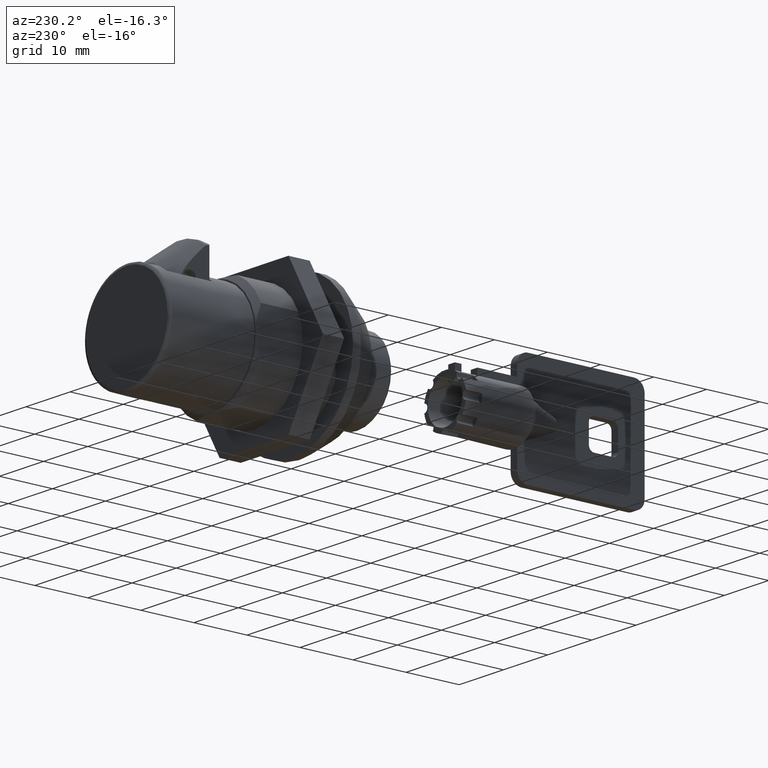
[diagram: clean part render]
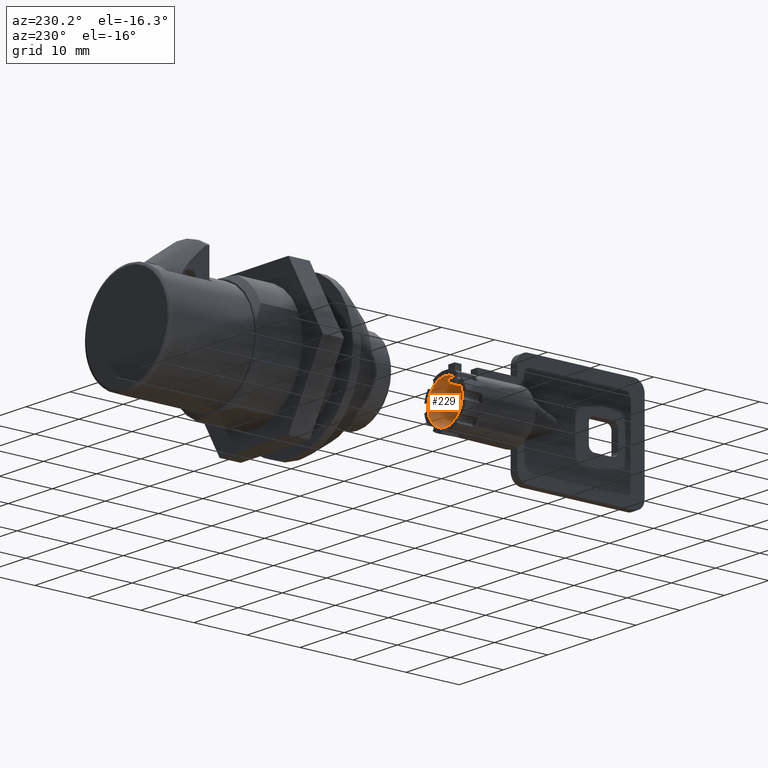
[diagram: same view with one face highlighted and labeled with its STEP entity id]
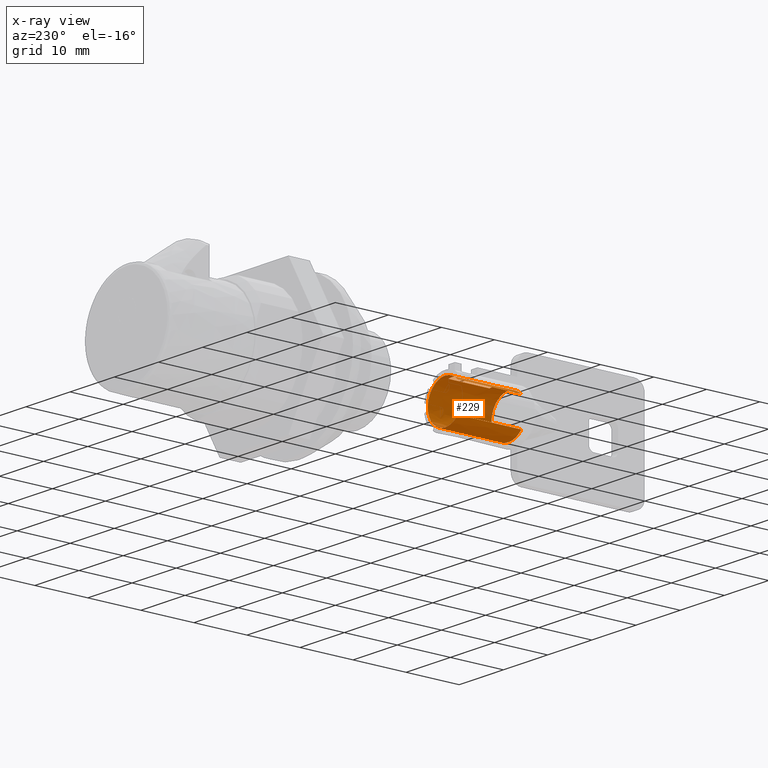
[diagram: x-ray of the same camera — body ghosted, the highlighted face saturated]
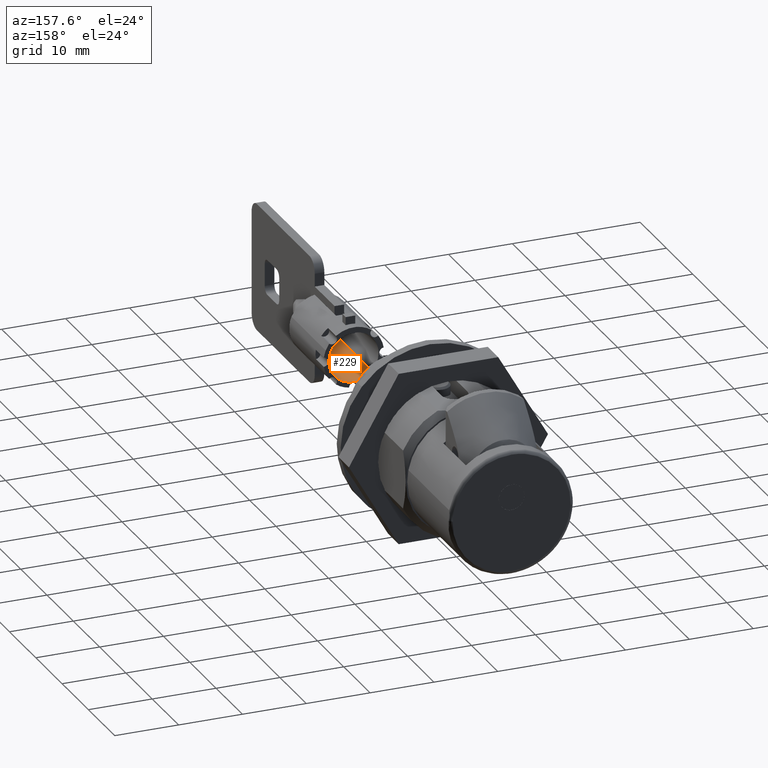
[diagram: same view with one face highlighted and labeled with its STEP entity id]
A machine part, auxiliary view. The second image highlights one B-rep face of the part: STEP entity #229.
The next image is the same camera in x-ray: the body ghosted, the highlighted face saturated — about 5% of this face is hidden behind the body in this view.
A second angle (auxiliary view) of the same face is appended — the face is thin or edge-on in the first view.
In plain terms, the highlighted face is a freeform B-spline surface patch.
Its self-contained STEP definition (entity closure, byte-faithful):
#44=CARTESIAN_POINT('',(-231.300000000000100,2.790782186700816,2.724249398713853));
#45=CARTESIAN_POINT('',(-231.300000000000070,2.712815339326325,2.804120385896108));
#46=CARTESIAN_POINT('',(-231.300000000000010,2.630408104447850,2.879401535745649));
#47=CARTESIAN_POINT('',(-231.300000000000070,-0.248993431297913,5.509809640193499));
#48=CARTESIAN_POINT('',(-231.300000000000010,-2.879401535745763,2.630408104447736));
#49=CARTESIAN_POINT('',(-231.300000000000070,-5.509809640193612,-0.248993431298027));
#50=CARTESIAN_POINT('',(-231.300000000000010,-2.630408104447850,-2.879401535745877));
#51=CARTESIAN_POINT('',(-231.300000000000070,0.248993431297913,-5.509809640193727));
#52=CARTESIAN_POINT('',(-231.300000000000010,2.879401535745763,-2.630408104447964));
#53=CARTESIAN_POINT('',(-218.692500000000050,2.790782186700816,2.724249398713853));
#54=CARTESIAN_POINT('',(-218.692500000000050,2.712815339326325,2.804120385896108));
#55=CARTESIAN_POINT('',(-218.692500000000000,2.630408104447850,2.879401535745649));
#56=CARTESIAN_POINT('',(-218.692500000000050,-0.248993431297913,5.509809640193499));
#57=CARTESIAN_POINT('',(-218.692500000000000,-2.879401535745763,2.630408104447736));
#58=CARTESIAN_POINT('',(-218.692500000000050,-5.509809640193612,-0.248993431298027));
#59=CARTESIAN_POINT('',(-218.692500000000000,-2.630408104447850,-2.879401535745877));
#60=CARTESIAN_POINT('',(-218.692500000000050,0.248993431297913,-5.509809640193727));
#61=CARTESIAN_POINT('',(-218.692500000000000,2.879401535745763,-2.630408104447964));
#69=(BOUNDED_SURFACE()B_SPLINE_SURFACE(2,1,((#44,#53),(#45,#54),(#46,#55),(#47,#56),(#48,#57),(#49,#58),(#50,#59),(#51,#60),(#52,#61)),.UNSPECIFIED.,.F.,.F.,.U.)B_SPLINE_SURFACE_WITH_KNOTS((3,2,2,2,3),(2,2),(0.0,0.258469262920812,6.720200835941092,13.181932408961369,19.643663981981650),(0.0,12.607500000000019),.UNSPECIFIED.)GEOMETRIC_REPRESENTATION_ITEM()RATIONAL_B_SPLINE_SURFACE(((0.977505800795127,0.977505800795127),(0.988284271247462,0.988284271247462),(1.0,1.0),(0.707106781186548,0.707106781186548),(1.0,1.0),(0.707106781186548,0.707106781186548),(1.0,1.0),(0.707106781186548,0.707106781186548),(1.0,1.0)))REPRESENTATION_ITEM('')SURFACE());
#70=CARTESIAN_POINT('',(-231.0,0.0,3.899999999999886));
#71=VERTEX_POINT('',#70);
#72=CARTESIAN_POINT('',(-231.000000000000310,2.790782475479818,2.724249173253588));
#73=VERTEX_POINT('',#72);
#74=CARTESIAN_POINT('',(-231.0,0.0,3.899999999999886));
#75=CARTESIAN_POINT('',(-230.999999999999890,0.291569677032156,3.900029272954258));
#76=CARTESIAN_POINT('',(-230.999999999999600,0.939521909948238,3.827095861577755));
#77=CARTESIAN_POINT('',(-231.000000000002190,1.918398604289464,3.457123283443087));
#78=CARTESIAN_POINT('',(-230.999999999999800,2.519332914624143,3.002578126791581));
#79=CARTESIAN_POINT('',(-231.000000000000310,2.790782475479818,2.724249173253588));
#80=B_SPLINE_CURVE_WITH_KNOTS('',3,(#74,#75,#76,#77,#78,#79),.UNSPECIFIED.,.F.,.U.,(4,1,1,4),(0.000000141824521,0.874742396220620,1.943862133378580,3.110180605883055),.UNSPECIFIED.);
#81=EDGE_CURVE('',#71,#73,#80,.T.);
#82=ORIENTED_EDGE('',*,*,#81,.T.);
#83=CARTESIAN_POINT('',(-219.0,2.790782472419465,2.724249176388685));
#84=VERTEX_POINT('',#83);
#85=CARTESIAN_POINT('',(-231.000000000000310,2.790782475479818,2.724249173253588));
#86=CARTESIAN_POINT('',(-219.0,2.790782472419465,2.724249176388685));
#87=QUASI_UNIFORM_CURVE('',1,(#85,#86),.UNSPECIFIED.,.F.,.U.);
#88=EDGE_CURVE('',#73,#84,#87,.T.);
#89=ORIENTED_EDGE('',*,*,#88,.T.);
#90=CARTESIAN_POINT('',(-219.0,0.0,3.899999999999886));
#91=VERTEX_POINT('',#90);
#92=CARTESIAN_POINT('',(-219.0,0.0,3.899999999999886));
#93=CARTESIAN_POINT('',(-219.000000000000310,0.421211551607653,3.900268197294159));
#94=CARTESIAN_POINT('',(-218.999999999999800,1.068950825569437,3.793945541803141));
#95=CARTESIAN_POINT('',(-219.0,2.022889782230002,3.377989185602780));
#96=CARTESIAN_POINT('',(-219.000000000000310,2.519335089531802,3.002583660453186));
#97=CARTESIAN_POINT('',(-219.0,2.790782472419465,2.724249176388685));
#98=B_SPLINE_CURVE_WITH_KNOTS('',3,(#92,#93,#94,#95,#96,#97),.UNSPECIFIED.,.F.,.U.,(4,1,1,4),(0.000000141824401,1.263535590892909,1.943862130640100,3.110180601501553),.UNSPECIFIED.);
#99=EDGE_CURVE('',#91,#84,#98,.T.);
#100=ORIENTED_EDGE('',*,*,#99,.F.);
#101=CARTESIAN_POINT('',(-219.0,-3.899999999999995,-0.000000196682410));
#102=VERTEX_POINT('',#101);
#103=CARTESIAN_POINT('',(-219.0,-3.899999999999995,-0.000000196682410));
#104=CARTESIAN_POINT('',(-219.000000000000600,-3.900545300636530,0.510590796302484));
#105=CARTESIAN_POINT('',(-218.999999999998810,-3.702941108623278,1.499320026534649));
#106=CARTESIAN_POINT('',(-219.000000000000800,-3.030757099458803,2.533019252369926));
#107=CARTESIAN_POINT('',(-219.000000000000600,-2.262677153508446,3.211586336580925));
#108=CARTESIAN_POINT('',(-218.999999999997300,-1.339743011298382,3.734649592669995));
#109=CARTESIAN_POINT('',(-219.000000000004010,-0.510611038871416,3.900585077311314));
#110=CARTESIAN_POINT('',(-219.0,0.0,3.899999999999886));
#111=B_SPLINE_CURVE_WITH_KNOTS('',3,(#103,#104,#105,#106,#107,#108,#109,#110),.UNSPECIFIED.,.F.,.U.,(4,1,1,1,1,4),(0.000000559796155,1.531566278461405,2.967486195470442,3.637401842989736,4.594694778240386,6.126259513818889),.UNSPECIFIED.);
#112=EDGE_CURVE('',#102,#91,#111,.T.);
#113=ORIENTED_EDGE('',*,*,#112,.F.);
#114=CARTESIAN_POINT('',(-219.0,0.0,-3.900000000000114));
#115=VERTEX_POINT('',#114);
#116=CARTESIAN_POINT('',(-219.0,0.0,-3.900000000000114));
#117=CARTESIAN_POINT('',(-219.000000000000400,-0.606441428800244,-3.900956754425516));
#118=CARTESIAN_POINT('',(-218.999999999999600,-1.530747717843891,-3.679893181240304));
#119=CARTESIAN_POINT('',(-219.000000000000510,-2.546317669441315,-3.000673900406954));
#120=CARTESIAN_POINT('',(-218.999999999999290,-3.223716555885120,-2.271696782253272));
#121=CARTESIAN_POINT('',(-219.000000000000800,-3.755901618448069,-1.276122685099909));
#122=CARTESIAN_POINT('',(-218.999999999999690,-3.900304134535765,-0.446740024101437));
#123=CARTESIAN_POINT('',(-219.0,-3.899999999999995,-0.000000196682410));
#124=B_SPLINE_CURVE_WITH_KNOTS('',3,(#116,#117,#118,#119,#120,#121,#122,#123),.UNSPECIFIED.,.F.,.U.,(4,1,1,1,1,4),(0.000000560065726,1.818754501048166,2.776019086348707,3.637401711080895,4.786143843678828,6.126259292106567),.UNSPECIFIED.);
#125=EDGE_CURVE('',#115,#102,#124,.T.);
#126=ORIENTED_EDGE('',*,*,#125,.F.);
#127=CARTESIAN_POINT('',(-219.0,2.879401499097993,-2.630408071958728));
#128=VERTEX_POINT('',#127);
#129=CARTESIAN_POINT('',(-219.0,2.879401499097993,-2.630408071958728));
#130=CARTESIAN_POINT('',(-218.999999999999800,2.493010146496363,-3.054491958312336));
#131=CARTESIAN_POINT('',(-219.000000000000400,1.585575302466829,-3.686875558062659));
#132=CARTESIAN_POINT('',(-218.999999999999600,0.506188608164957,-3.900475864990066));
#133=CARTESIAN_POINT('',(-219.0,0.0,-3.900000000000114));
#134=B_SPLINE_CURVE_WITH_KNOTS('',3,(#129,#130,#131,#132,#133),.UNSPECIFIED.,.F.,.U.,(4,1,4),(0.000000173600033,1.720821131238655,3.239268516770392),.UNSPECIFIED.);
#135=EDGE_CURVE('',#128,#115,#134,.T.);
#136=ORIENTED_EDGE('',*,*,#135,.F.);
#137=CARTESIAN_POINT('',(-231.0,2.879401499097993,-2.630408071958728));
#138=VERTEX_POINT('',#137);
#139=CARTESIAN_POINT('',(-231.0,2.879401499097993,-2.630408071958728));
#140=CARTESIAN_POINT('',(-219.0,2.879401499097993,-2.630408071958728));
#141=QUASI_UNIFORM_CURVE('',1,(#139,#140),.UNSPECIFIED.,.F.,.U.);
#142=EDGE_CURVE('',#138,#128,#141,.T.);
#143=ORIENTED_EDGE('',*,*,#142,.F.);
#144=CARTESIAN_POINT('',(-231.0,0.0,-3.900000000000114));
#145=VERTEX_POINT('',#144);
#146=CARTESIAN_POINT('',(-231.0,2.879401499097993,-2.630408071958728));
#147=CARTESIAN_POINT('',(-231.000000000000110,2.493026224673515,-3.054522639416653));
#148=CARTESIAN_POINT('',(-230.999999999999490,1.585542121057881,-3.686802427116098));
#149=CARTESIAN_POINT('',(-231.000000000000200,0.506195427148331,-3.900498201957693));
#150=CARTESIAN_POINT('',(-231.0,0.0,-3.900000000000114));
#151=B_SPLINE_CURVE_WITH_KNOTS('',3,(#146,#147,#148,#149,#150),.UNSPECIFIED.,.F.,.U.,(4,1,4),(0.000000173600033,1.720821131238655,3.239268516770392),.UNSPECIFIED.);
#152=EDGE_CURVE('',#138,#145,#151,.T.);
#153=ORIENTED_EDGE('',*,*,#152,.T.);
#154=CARTESIAN_POINT('',(-231.0,-3.899999999999995,-0.000000196682410));
#155=VERTEX_POINT('',#154);
#156=CARTESIAN_POINT('',(-231.0,0.0,-3.900000000000114));
#157=CARTESIAN_POINT('',(-230.999999999999690,-0.382880991783369,-3.900140462439762));
#158=CARTESIAN_POINT('',(-231.000000000000310,-1.180515518698878,-3.781660835894755));
#159=CARTESIAN_POINT('',(-231.000000000000110,-2.138775568389465,-3.314020279217036));
#160=CARTESIAN_POINT('',(-230.999999999999010,-3.012994162679680,-2.560148513527489));
#161=CARTESIAN_POINT('',(-231.000000000000990,-3.702960023885242,-1.499352811175666));
#162=CARTESIAN_POINT('',(-230.999999999999490,-3.900550611246412,-0.510588943925301));
#163=CARTESIAN_POINT('',(-231.0,-3.899999999999995,-0.000000196682410));
#164=B_SPLINE_CURVE_WITH_KNOTS('',3,(#156,#157,#158,#159,#160,#161,#162,#163),.UNSPECIFIED.,.F.,.U.,(4,1,1,1,1,4),(0.000000560065726,1.148646622755752,2.393095040292872,3.158772512842278,4.594694611786834,6.126259292106567),.UNSPECIFIED.);
#165=EDGE_CURVE('',#145,#155,#164,.T.);
#166=ORIENTED_EDGE('',*,*,#165,.T.);
#167=CARTESIAN_POINT('',(-231.0,-3.899999999999995,-0.000000196682410));
#168=CARTESIAN_POINT('',(-231.000000000000310,-3.900156248614439,0.382887325041956));
#169=CARTESIAN_POINT('',(-230.999999999999200,-3.800524341054707,1.052843071331190));
#170=CARTESIAN_POINT('',(-231.000000000001110,-3.446326594239548,1.878973779666948));
#171=CARTESIAN_POINT('',(-230.999999999999400,-2.975288199922048,2.565570561987129));
#172=CARTESIAN_POINT('',(-231.000000000000310,-2.300183288880016,3.208527216744809));
#173=CARTESIAN_POINT('',(-230.999999999999010,-1.276113348914566,3.755894727859127));
#174=CARTESIAN_POINT('',(-231.000000000002190,-0.446740934142042,3.900305440454610));
#175=CARTESIAN_POINT('',(-231.0,0.0,3.899999999999886));
#176=B_SPLINE_CURVE_WITH_KNOTS('',3,(#167,#168,#169,#170,#171,#172,#173,#174,#175),.UNSPECIFIED.,.F.,.U.,(4,1,1,1,1,1,4),(0.000000559796155,1.148646664088465,2.010182887472674,2.680259744523159,3.637401842989736,4.786144016954220,6.126259513818889),.UNSPECIFIED.);
#177=EDGE_CURVE('',#155,#71,#176,.T.);
#178=ORIENTED_EDGE('',*,*,#177,.T.);
#179=EDGE_LOOP('',(#82,#89,#100,#113,#126,#136,#143,#153,#166,#178));
#180=FACE_OUTER_BOUND('',#179,.T.);
#181=CARTESIAN_POINT('',(-228.0,-0.750000000000000,3.827205246651810));
#182=VERTEX_POINT('',#181);
#183=CARTESIAN_POINT('',(-226.242444563790000,-0.750000000000028,3.827205246651810));
#184=VERTEX_POINT('',#183);
#185=CARTESIAN_POINT('',(-228.0,-0.750000000000000,3.827205246651810));
#186=CARTESIAN_POINT('',(-226.242444563790000,-0.750000000000028,3.827205246651810));
#187=QUASI_UNIFORM_CURVE('',1,(#185,#186),.UNSPECIFIED.,.F.,.U.);
#188=EDGE_CURVE('',#182,#184,#187,.T.);
#189=ORIENTED_EDGE('',*,*,#188,.T.);
#190=CARTESIAN_POINT('',(-220.242444563790000,-0.750000000000028,3.827205246651810));
#191=VERTEX_POINT('',#190);
#192=CARTESIAN_POINT('',(-226.242444563790000,-0.750000000000028,3.827205246651810));
#193=CARTESIAN_POINT('',(-220.242444563790000,-0.750000000000028,3.827205246651810));
#194=QUASI_UNIFORM_CURVE('',1,(#192,#193),.UNSPECIFIED.,.F.,.U.);
#195=EDGE_CURVE('',#184,#191,#194,.T.);
#196=ORIENTED_EDGE('',*,*,#195,.T.);
#197=CARTESIAN_POINT('',(-220.242444563790000,0.750000000000028,3.827205246651810));
#198=VERTEX_POINT('',#197);
#199=CARTESIAN_POINT('',(-220.242444563790000,0.750000000000028,3.827205246651810));
#200=CARTESIAN_POINT('',(-220.242444563790000,0.256265036633721,3.924299915649528));
#201=CARTESIAN_POINT('',(-220.242444563790200,-0.256265934511977,3.924222056369695));
#202=CARTESIAN_POINT('',(-220.242444563790000,-0.750000000000028,3.827205246651810));
#203=B_SPLINE_CURVE_WITH_KNOTS('',3,(#199,#200,#201,#202),.UNSPECIFIED.,.F.,.U.,(4,4),(0.000000032485850,1.509439691359934),.UNSPECIFIED.);
#204=EDGE_CURVE('',#198,#191,#203,.T.);
#205=ORIENTED_EDGE('',*,*,#204,.F.);
#206=CARTESIAN_POINT('',(-226.242444563790000,0.750000000000028,3.827205246651810));
#207=VERTEX_POINT('',#206);
#208=CARTESIAN_POINT('',(-226.242444563790000,0.750000000000028,3.827205246651810));
#209=CARTESIAN_POINT('',(-220.242444563790000,0.750000000000028,3.827205246651810));
#210=QUASI_UNIFORM_CURVE('',1,(#208,#209),.UNSPECIFIED.,.F.,.U.);
#211=EDGE_CURVE('',#207,#198,#210,.T.);
#212=ORIENTED_EDGE('',*,*,#211,.F.);
#213=CARTESIAN_POINT('',(-228.0,0.750000000000000,3.827205246651810));
#214=VERTEX_POINT('',#213);
#215=CARTESIAN_POINT('',(-228.0,0.750000000000000,3.827205246651810));
#216=CARTESIAN_POINT('',(-226.242444563790000,0.750000000000028,3.827205246651810));
#217=QUASI_UNIFORM_CURVE('',1,(#215,#216),.UNSPECIFIED.,.F.,.U.);
#218=EDGE_CURVE('',#214,#207,#217,.T.);
#219=ORIENTED_EDGE('',*,*,#218,.F.);
#220=CARTESIAN_POINT('',(-228.0,-0.750000000000000,3.827205246651810));
#221=CARTESIAN_POINT('',(-228.000000000000110,-0.256266908178194,3.924208135540013));
#222=CARTESIAN_POINT('',(-228.000000000000510,0.256267208156375,3.924318219974063));
#223=CARTESIAN_POINT('',(-228.0,0.750000000000000,3.827205246651810));
#224=B_SPLINE_CURVE_WITH_KNOTS('',3,(#220,#221,#222,#223),.UNSPECIFIED.,.F.,.U.,(4,4),(0.000000032485838,1.509439691359879),.UNSPECIFIED.);
#225=EDGE_CURVE('',#182,#214,#224,.T.);
#226=ORIENTED_EDGE('',*,*,#225,.F.);
#227=EDGE_LOOP('',(#189,#196,#205,#212,#219,#226));
#228=FACE_BOUND('',#227,.T.);
#229=ADVANCED_FACE('',(#180,#228),#69,.F.);